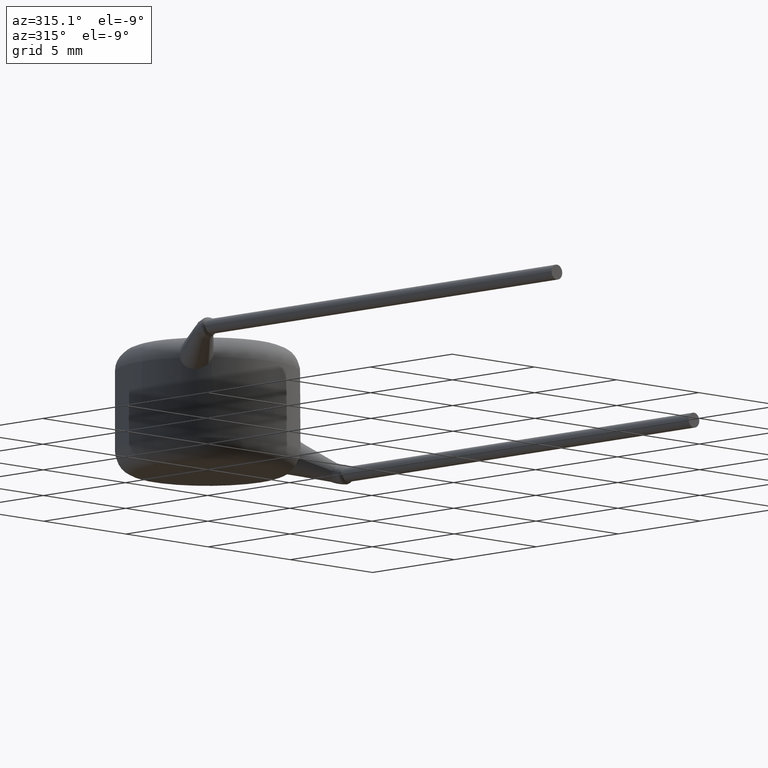
[diagram: clean part render]
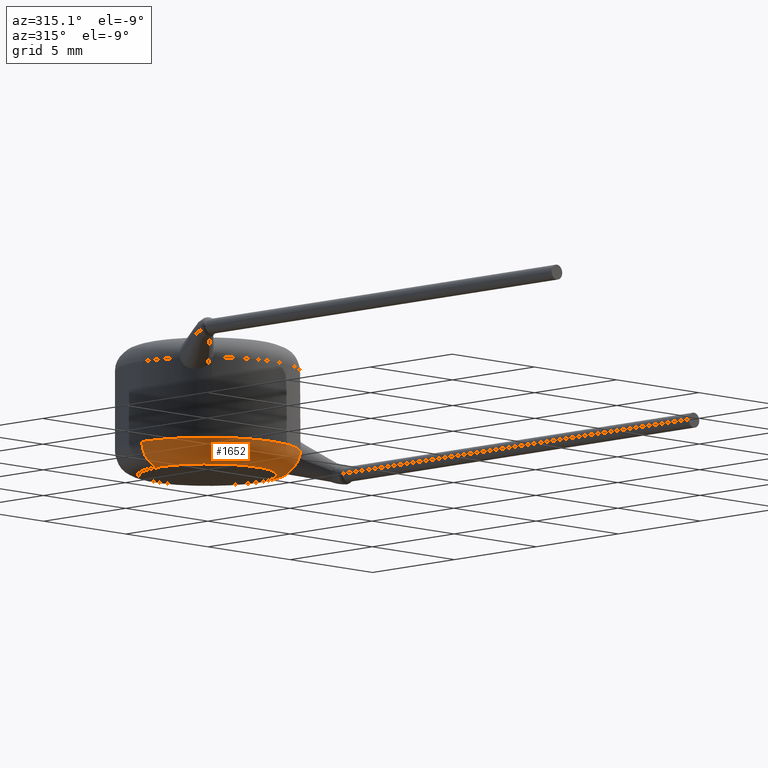
[diagram: same view with one face highlighted and labeled with its STEP entity id]
A machine part, auxiliary view. The second image highlights one B-rep face of the part: STEP entity #1652.
In plain terms, the highlighted toroidal blend (fillet) surface has major radius 3 mm and minor (blend) radius 1 mm.
Its self-contained STEP definition (entity closure, byte-faithful):
#20 = CARTESIAN_POINT ( 'NONE',  ( 2.690317438589411700, -2.141207820823210800, 0.1004742097576607600 ) ) ;
#32 = DIRECTION ( 'NONE',  ( 1.000000000000000000, 0.0000000000000000000, 0.0000000000000000000 ) ) ;
#34 = CARTESIAN_POINT ( 'NONE',  ( 3.000000000000000000, 0.0000000000000000000, 0.0000000000000000000 ) ) ;
#122 = CIRCLE ( 'NONE', #3850, 4.000000000000000000 ) ;
#165 = CARTESIAN_POINT ( 'NONE',  ( 2.629047251869808900, -3.014955386813097600, 0.8926327732432735000 ) ) ;
#198 = ORIENTED_EDGE ( 'NONE', *, *, #2213, .T. ) ;
#201 = VERTEX_POINT ( 'NONE', #433 ) ;
#246 = CARTESIAN_POINT ( 'NONE',  ( -4.000000000000000000, 0.0000000000000000000, 1.000000000000000000 ) ) ;
#290 = AXIS2_PLACEMENT_3D ( 'NONE', #2691, #2346, #32 ) ;
#312 = EDGE_CURVE ( 'NONE', #3817, #2527, #1938, .T. ) ;
#325 = CARTESIAN_POINT ( 'NONE',  ( 2.644033771869164000, -2.233163465894934900, 0.1109092853100779300 ) ) ;
#355 = CARTESIAN_POINT ( 'NONE',  ( 2.546263268465030400, -2.906705588487702200, 0.4881940526929461900 ) ) ;
#421 = CIRCLE ( 'NONE', #1786, 1.000000000000000000 ) ;
#433 = CARTESIAN_POINT ( 'NONE',  ( -3.000000000000000000, 4.286263797015736600E-016, 0.0000000000000000000 ) ) ;
#583 = CARTESIAN_POINT ( 'NONE',  ( 0.0000000000000000000, 0.0000000000000000000, 1.000000000000000000 ) ) ;
#664 = ORIENTED_EDGE ( 'NONE', *, *, #2025, .F. ) ;
#701 = CARTESIAN_POINT ( 'NONE',  ( 2.907622092442964800, -1.932272445917641200, 0.1261822893119708100 ) ) ;
#880 = ORIENTED_EDGE ( 'NONE', *, *, #312, .F. ) ;
#915 = EDGE_CURVE ( 'NONE', #4124, #1848, #3781, .T. ) ;
#923 = DIRECTION ( 'NONE',  ( 0.0000000000000000000, 0.0000000000000000000, 1.000000000000000000 ) ) ;
#988 = DIRECTION ( 'NONE',  ( 1.000000000000000000, 0.0000000000000000000, 0.0000000000000000000 ) ) ;
#1047 = CARTESIAN_POINT ( 'NONE',  ( 2.580868280833605900, -2.416671840132011500, 0.1537753101554426600 ) ) ;
#1210 = CARTESIAN_POINT ( 'NONE',  ( 3.539845360637302400, -1.862657999412282700, 0.9999999999999997800 ) ) ;
#1301 = DIRECTION ( 'NONE',  ( -1.000000000000000000, 1.224646799147353000E-016, 0.0000000000000000000 ) ) ;
#1329 = CARTESIAN_POINT ( 'NONE',  ( 3.522106828651827100, -1.818972553488656100, 0.7159963636234485400 ) ) ;
#1400 = ORIENTED_EDGE ( 'NONE', *, *, #3189, .F. ) ;
#1415 = CARTESIAN_POINT ( 'NONE',  ( 3.539845360637302400, -1.862657999412282700, 0.9999999999999997800 ) ) ;
#1449 = CARTESIAN_POINT ( 'NONE',  ( 2.577864893748584900, -2.985163514911587200, 0.6705818948516829600 ) ) ;
#1504 = DIRECTION ( 'NONE',  ( 1.000000000000000000, 0.0000000000000000000, 0.0000000000000000000 ) ) ;
#1552 = CIRCLE ( 'NONE', #3892, 3.000000000000000000 ) ;
#1562 = ORIENTED_EDGE ( 'NONE', *, *, #3542, .F. ) ;
#1564 = CARTESIAN_POINT ( 'NONE',  ( 3.535956434662465700, -1.832701021356655000, 0.8147166726467144300 ) ) ;
#1601 = CARTESIAN_POINT ( 'NONE',  ( 2.661119846902723300, -2.986375924163002300, 1.000000000000000000 ) ) ;
#1652 = ADVANCED_FACE ( 'NONE', ( #3368 ), #4243, .T. ) ;
#1686 = AXIS2_PLACEMENT_3D ( 'NONE', #4213, #2627, #2582 ) ;
#1690 = CARTESIAN_POINT ( 'NONE',  ( 2.561705123459018500, -2.511502259899539300, 0.1870776236418360300 ) ) ;
#1729 = ORIENTED_EDGE ( 'NONE', *, *, #3852, .F. ) ;
#1747 = EDGE_CURVE ( 'NONE', #1848, #3817, #3388, .T. ) ;
#1764 = VERTEX_POINT ( 'NONE', #34 ) ;
#1786 = AXIS2_PLACEMENT_3D ( 'NONE', #3242, #2666, #1301 ) ;
#1848 = VERTEX_POINT ( 'NONE', #3963 ) ;
#1938 = B_SPLINE_CURVE_WITH_KNOTS ( 'NONE', 3,
 ( #2469, #2106, #4084, #1415 ),
 .UNSPECIFIED., .F., .F.,
 ( 4, 4 ),
 ( 0.002738296931238307300, 0.002924281675916345000 ),
 .UNSPECIFIED. ) ;
#1978 = ORIENTED_EDGE ( 'NONE', *, *, #915, .F. ) ;
#2012 = CARTESIAN_POINT ( 'NONE',  ( 3.321295623246094400, -1.806928389340637200, 0.3690000136585733200 ) ) ;
#2025 = EDGE_CURVE ( 'NONE', #2527, #3223, #122, .T. ) ;
#2030 = CARTESIAN_POINT ( 'NONE',  ( 3.535956434662465700, -1.832701021356655000, 0.8147166726467144300 ) ) ;
#2106 = CARTESIAN_POINT ( 'NONE',  ( 3.544558518074137200, -1.841227865053466800, 0.8760325203315024700 ) ) ;
#2213 = EDGE_CURVE ( 'NONE', #1764, #3223, #2807, .T. ) ;
#2346 = DIRECTION ( 'NONE',  ( 0.0000000000000000000, 0.0000000000000000000, 1.000000000000000000 ) ) ;
#2413 = AXIS2_PLACEMENT_3D ( 'NONE', #583, #923, #3215 ) ;
#2463 = CARTESIAN_POINT ( 'NONE',  ( 2.661119846902723300, -2.986375924163002300, 1.000000000000000000 ) ) ;
#2469 = CARTESIAN_POINT ( 'NONE',  ( 3.535956434662465700, -1.832701021356655000, 0.8147166726467144300 ) ) ;
#2527 = VERTEX_POINT ( 'NONE', #1210 ) ;
#2582 = DIRECTION ( 'NONE',  ( 0.0000000000000000000, 0.0000000000000000000, -1.000000000000000000 ) ) ;
#2627 = DIRECTION ( 'NONE',  ( 0.0000000000000000000, -1.000000000000000000, 0.0000000000000000000 ) ) ;
#2632 = CARTESIAN_POINT ( 'NONE',  ( 2.539644347058216800, -2.687725088219465000, 0.2794599622358771600 ) ) ;
#2666 = DIRECTION ( 'NONE',  ( 1.224646799147353200E-016, 1.000000000000000000, -0.0000000000000000000 ) ) ;
#2691 = CARTESIAN_POINT ( 'NONE',  ( 0.0000000000000000000, 0.0000000000000000000, 1.000000000000000000 ) ) ;
#2694 = CARTESIAN_POINT ( 'NONE',  ( 2.821922582970889200, -1.989927497875542400, 0.1077069956625209000 ) ) ;
#2764 = CARTESIAN_POINT ( 'NONE',  ( 2.599454814573739700, -3.016087451580431900, 0.7781101310581628500 ) ) ;
#2807 = CIRCLE ( 'NONE', #1686, 1.000000000000000000 ) ;
#2951 = CARTESIAN_POINT ( 'NONE',  ( 2.536738078800428600, -2.770341909159030000, 0.3390704596608483100 ) ) ;
#2984 = CARTESIAN_POINT ( 'NONE',  ( 0.0000000000000000000, 0.0000000000000000000, 0.0000000000000000000 ) ) ;
#2989 = CARTESIAN_POINT ( 'NONE',  ( 3.080337039399621400, -1.855173193119442200, 0.1938507810513863700 ) ) ;
#3003 = CARTESIAN_POINT ( 'NONE',  ( 3.167715353098252300, -1.832834223562563900, 0.2431589180326818600 ) ) ;
#3085 = ORIENTED_EDGE ( 'NONE', *, *, #1747, .F. ) ;
#3160 = CARTESIAN_POINT ( 'NONE',  ( 2.577864893748584900, -2.985163514911587200, 0.6705818948516829600 ) ) ;
#3189 = EDGE_CURVE ( 'NONE', #201, #3675, #421, .T. ) ;
#3215 = DIRECTION ( 'NONE',  ( 1.000000000000000000, 0.0000000000000000000, 0.0000000000000000000 ) ) ;
#3223 = VERTEX_POINT ( 'NONE', #4273 ) ;
#3242 = CARTESIAN_POINT ( 'NONE',  ( -3.000000000000000000, 3.673940397442059900E-016, 1.000000000000000000 ) ) ;
#3368 = FACE_OUTER_BOUND ( 'NONE', #3671, .T. ) ;
#3388 = B_SPLINE_CURVE_WITH_KNOTS ( 'NONE', 3,
 ( #3160, #3615, #355, #2951, #2632, #1690, #1047, #325, #20, #2694, #701, #2989, #3003, #2012, #3997, #3652, #1329, #2030 ),
 .UNSPECIFIED., .F., .F.,
 ( 4, 2, 2, 2, 2, 2, 2, 2, 4 ),
 ( 0.0003427698808594892800, 0.0006422107621568415900, 0.0009416516434541937400, 0.001241092524751546100, 0.001540533406048898200, 0.001839974287346250400, 0.002139415168643603000, 0.002438856049940955100, 0.002738296931238307300 ),
 .UNSPECIFIED. ) ;
#3542 = EDGE_CURVE ( 'NONE', #1764, #201, #1552, .T. ) ;
#3615 = CARTESIAN_POINT ( 'NONE',  ( 2.558992409427602900, -2.958131849781725300, 0.5765878052807178500 ) ) ;
#3647 = DIRECTION ( 'NONE',  ( -0.0000000000000000000, -0.0000000000000000000, -1.000000000000000000 ) ) ;
#3652 = CARTESIAN_POINT ( 'NONE',  ( 3.488739121043133600, -1.809438999931934000, 0.6196461922254081800 ) ) ;
#3671 = EDGE_LOOP ( 'NONE', ( #1400, #1562, #198, #664, #880, #3085, #1978, #1729 ) ) ;
#3675 = VERTEX_POINT ( 'NONE', #246 ) ;
#3773 = CARTESIAN_POINT ( 'NONE',  ( 0.0000000000000000000, 0.0000000000000000000, 1.000000000000000000 ) ) ;
#3781 = B_SPLINE_CURVE_WITH_KNOTS ( 'NONE', 3,
 ( #2463, #165, #2764, #1449 ),
 .UNSPECIFIED., .F., .F.,
 ( 4, 4 ),
 ( 2.127056053094546900E-007, 0.0003427698808594892800 ),
 .UNSPECIFIED. ) ;
#3817 = VERTEX_POINT ( 'NONE', #1564 ) ;
#3850 = AXIS2_PLACEMENT_3D ( 'NONE', #3773, #4076, #1504 ) ;
#3852 = EDGE_CURVE ( 'NONE', #3675, #4124, #4263, .T. ) ;
#3892 = AXIS2_PLACEMENT_3D ( 'NONE', #2984, #3647, #988 ) ;
#3963 = CARTESIAN_POINT ( 'NONE',  ( 2.577864893748584900, -2.985163514911587200, 0.6705818948516829600 ) ) ;
#3997 = CARTESIAN_POINT ( 'NONE',  ( 3.388636072042733500, -1.803465864532068500, 0.4465429152178732600 ) ) ;
#4076 = DIRECTION ( 'NONE',  ( 0.0000000000000000000, 0.0000000000000000000, 1.000000000000000000 ) ) ;
#4084 = CARTESIAN_POINT ( 'NONE',  ( 3.545773946085354100, -1.851391156173349200, 0.9383908134287717300 ) ) ;
#4124 = VERTEX_POINT ( 'NONE', #1601 ) ;
#4213 = CARTESIAN_POINT ( 'NONE',  ( 3.000000000000000000, 0.0000000000000000000, 1.000000000000000000 ) ) ;
#4243 = TOROIDAL_SURFACE ( 'NONE', #290, 3.000000000000000000, 1.000000000000000000 ) ;
#4263 = CIRCLE ( 'NONE', #2413, 4.000000000000000000 ) ;
#4273 = CARTESIAN_POINT ( 'NONE',  ( 4.000000000000000000, 4.898587196589412800E-016, 1.000000000000000000 ) ) ;